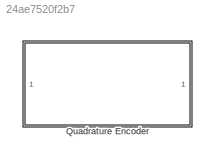
MODEL slx_24ae7520f2b7
KIND library
CONFIG AbsTol = auto
CONFIG EnableMultiTasking = off
CONFIG FixedStep = auto
CONFIG MaxStep = auto
CONFIG MinStep = auto
CONFIG RelTol = 1e-3
CONFIG SampleTimeConstraint = Unconstrained
CONFIG SolverName = VariableStepAuto
CONFIG StartTime = 0.0
CONFIG StopTime = 10.0
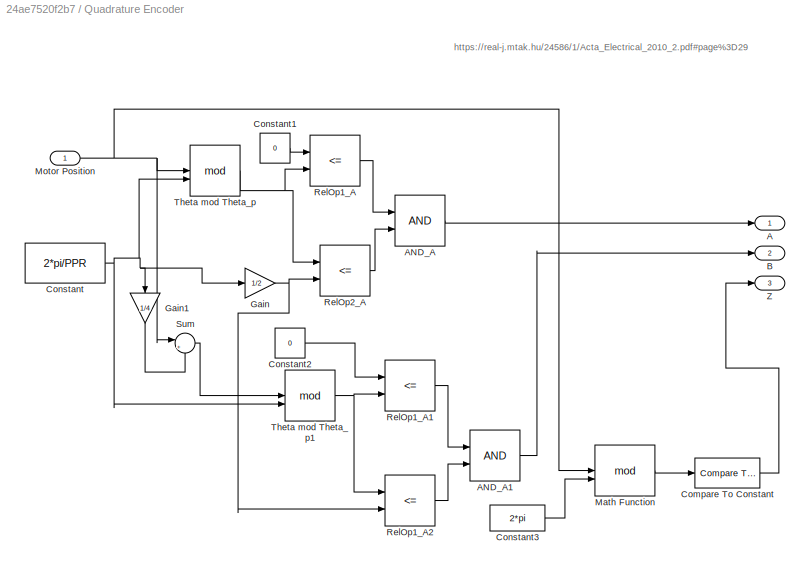
BLOCK [SubSystem] Quadrature Encoder
BLOCK [Outport] Quadrature Encoder/A
BLOCK [Logic] Quadrature Encoder/AND_A
  AllPortsSameDT = off
  OutDataTypeStr = boolean
BLOCK [Logic] Quadrature Encoder/AND_A1
  AllPortsSameDT = off
  OutDataTypeStr = boolean
BLOCK [Outport] Quadrature Encoder/B
  Port = 2
BLOCK [Reference] Quadrature Encoder/Compare To Constant  REF=simulink/Logic and Bit
Operations/Compare
To Constant
  SourceBlock = simulink/Logic and Bit\nOperations/Compare\nTo Constant
  SourceType = Compare To Constant
BLOCK [Constant] Quadrature Encoder/Constant
  SampleTime = -1
  Value = 2*pi/PPR
BLOCK [Constant] Quadrature Encoder/Constant1
  SampleTime = -1
  Value = 0
BLOCK [Constant] Quadrature Encoder/Constant2
  SampleTime = -1
  Value = 0
BLOCK [Constant] Quadrature Encoder/Constant3
  SampleTime = -1
  Value = 2*pi
BLOCK [Gain] Quadrature Encoder/Gain
  Gain = 1/2
BLOCK [Gain] Quadrature Encoder/Gain1
  Gain = 1/4
  NameLocation = left
BLOCK [Math] Quadrature Encoder/Math Function
  Operator = mod
BLOCK [Inport] Quadrature Encoder/Motor Position
BLOCK [RelationalOperator] Quadrature Encoder/RelOp1_A
  InputSameDT = off
  Operator = <=
  OutDataTypeStr = boolean
  RndMeth = Simplest
BLOCK [RelationalOperator] Quadrature Encoder/RelOp1_A1
  InputSameDT = off
  Operator = <=
  OutDataTypeStr = boolean
  RndMeth = Simplest
BLOCK [RelationalOperator] Quadrature Encoder/RelOp1_A2
  InputSameDT = off
  Operator = <=
  OutDataTypeStr = boolean
  RndMeth = Simplest
BLOCK [RelationalOperator] Quadrature Encoder/RelOp2_A
  InputSameDT = off
  Operator = <=
  OutDataTypeStr = boolean
  RndMeth = Simplest
BLOCK [Sum] Quadrature Encoder/Sum
  Inputs = |+-
BLOCK [Math] Quadrature Encoder/Theta mod Theta_p
  Operator = mod
BLOCK [Math] Quadrature Encoder/Theta mod Theta_p1
  Operator = mod
BLOCK [Outport] Quadrature Encoder/Z
  Port = 3
ANNOTATION Quadrature Encoder: https://real-j.mtak.hu/24586/1/Acta_Electrical_2010_2.pdf#page%3D29
LINE Quadrature Encoder/AND_A1:1 -> Quadrature Encoder/B:1
LINE Quadrature Encoder/AND_A:1 -> Quadrature Encoder/A:1
LINE Quadrature Encoder/Compare To Constant:1 -> Quadrature Encoder/Z:1
LINE Quadrature Encoder/Constant1:1 -> Quadrature Encoder/RelOp1_A:1
LINE Quadrature Encoder/Constant2:1 -> Quadrature Encoder/RelOp1_A1:1
LINE Quadrature Encoder/Constant3:1 -> Quadrature Encoder/Math Function:2
NET Quadrature Encoder/Constant:1 -> Quadrature Encoder/Gain1:1, Quadrature Encoder/Gain:1, Quadrature Encoder/Theta mod Theta_p1:2, Quadrature Encoder/Theta mod Theta_p:2
LINE Quadrature Encoder/Gain1:1 -> Quadrature Encoder/Sum:2
NET Quadrature Encoder/Gain:1 -> Quadrature Encoder/RelOp1_A2:2, Quadrature Encoder/RelOp2_A:2
LINE Quadrature Encoder/Math Function:1 -> Quadrature Encoder/Compare To Constant:1
NET Quadrature Encoder/Motor Position:1 -> Quadrature Encoder/Math Function:1, Quadrature Encoder/Sum:1, Quadrature Encoder/Theta mod Theta_p:1
LINE Quadrature Encoder/RelOp1_A1:1 -> Quadrature Encoder/AND_A1:1
LINE Quadrature Encoder/RelOp1_A2:1 -> Quadrature Encoder/AND_A1:2
LINE Quadrature Encoder/RelOp1_A:1 -> Quadrature Encoder/AND_A:1
LINE Quadrature Encoder/RelOp2_A:1 -> Quadrature Encoder/AND_A:2
LINE Quadrature Encoder/Sum:1 -> Quadrature Encoder/Theta mod Theta_p1:1
NET Quadrature Encoder/Theta mod Theta_p1:1 -> Quadrature Encoder/RelOp1_A1:2, Quadrature Encoder/RelOp1_A2:1
NET Quadrature Encoder/Theta mod Theta_p:1 -> Quadrature Encoder/RelOp1_A:2, Quadrature Encoder/RelOp2_A:1
note: NET lines group one-source signal fan-out (src -> all destinations, sorted); 1:1 wires keep LINE
